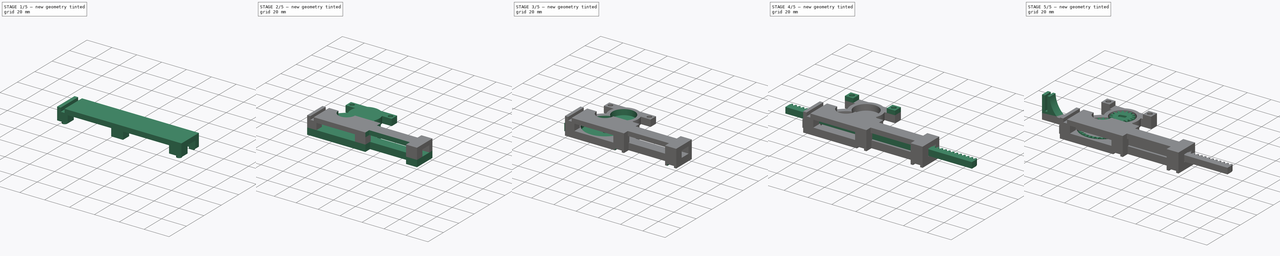
[diagram: build sequence overview — one tinted view per stage of 5, left to right]
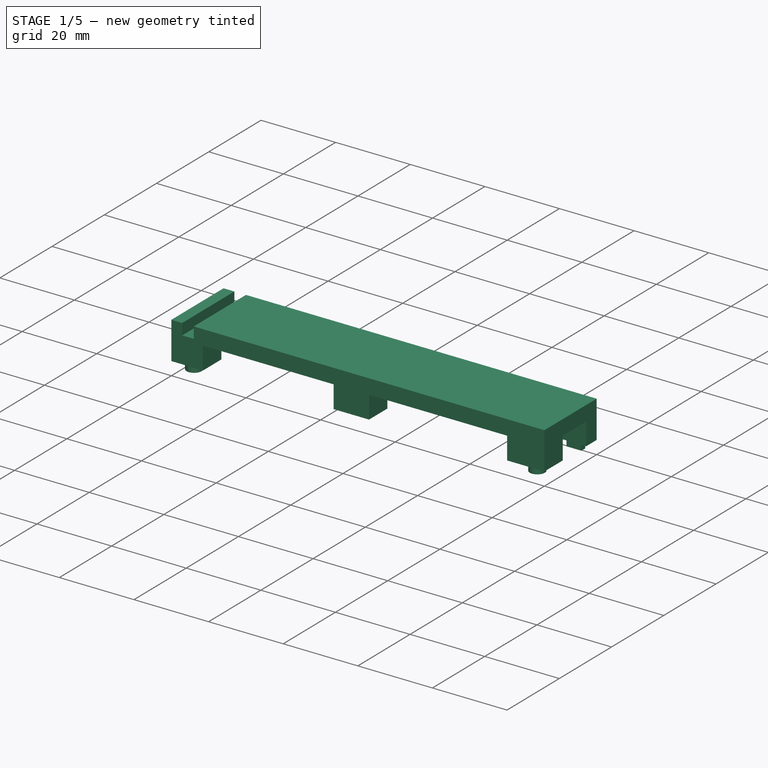
[diagram: stage 1 of 5 — iso view after this stage's code; geometry added in this stage tinted green]
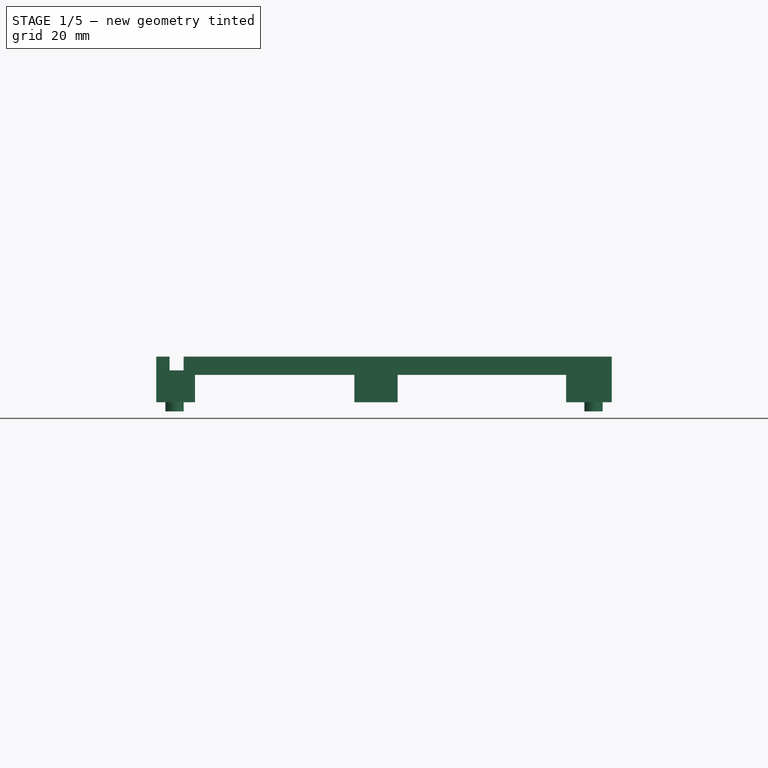
[diagram: stage 1 of 5 — front view after this stage's code; geometry added in this stage tinted green]
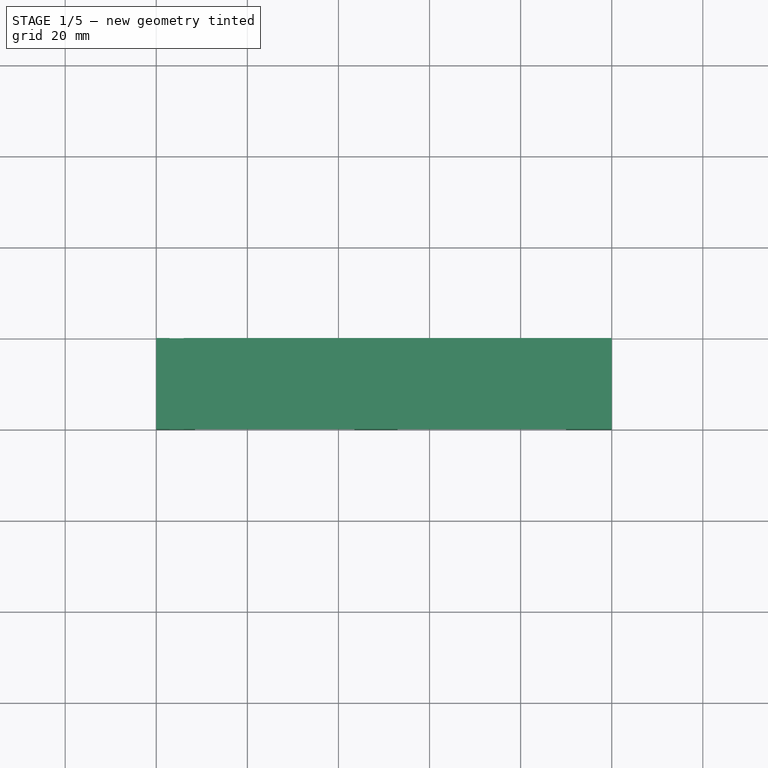
[diagram: stage 1 of 5 — top view after this stage's code; geometry added in this stage tinted green]
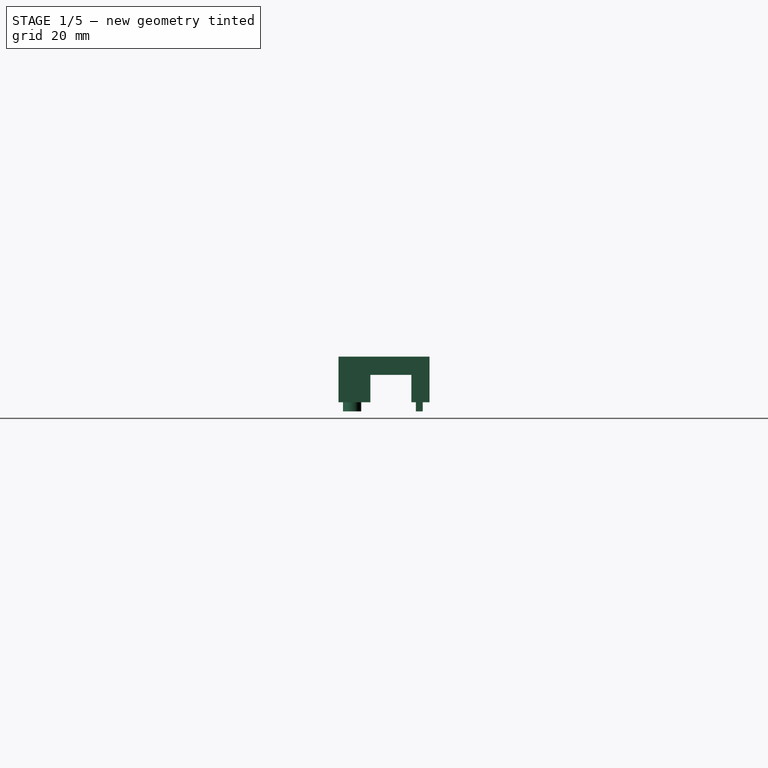
[diagram: stage 1 of 5 — right view after this stage's code; geometry added in this stage tinted green]
FCSTD DOCUMENT  (FreeCAD 0.16R)
Label: pump5
License: All rights reserved
LicenseURL: http://en.wikipedia.org/wiki/All_rights_reserved
objects: Sketcher::SketchObject×15, PartDesign::Pocket×9, PartDesign::Pad×6, Part::FeaturePython×2, Part::Cut×1
note: 48 computed .brp shape members not serialized (recipe doc carries the construction recipe); baked Part::Feature solids carry a one-line shape summary decoded from their .brp

FEATURE [Sketcher::SketchObject] Sketch004  label="rack_pocket"
  Placement = pos=(100,0,0) rot=(0.57735,0.57735,0.57735;2.0944rad)
  sketch-geometry (8):
    g0: LineSegment StartX=7 StartY=12 StartZ=0 EndX=16 EndY=12 EndZ=0
    g1: LineSegment StartX=16 StartY=12 StartZ=0 EndX=16 EndY=6 EndZ=0
    g2: LineSegment StartX=7 StartY=6 StartZ=0 EndX=7 EndY=12 EndZ=0
    g3: LineSegment StartX=20 StartY=6 StartZ=0 EndX=20 EndY=16 EndZ=0
    g4: LineSegment StartX=20 StartY=16 StartZ=0 EndX=0 EndY=16 EndZ=0
    g5: LineSegment StartX=0 StartY=16 StartZ=0 EndX=0 EndY=6 EndZ=0
    g6: LineSegment StartX=0 StartY=6 StartZ=0 EndX=7 EndY=6 EndZ=0
    g7: LineSegment StartX=16 StartY=6 StartZ=0 EndX=20 EndY=6 EndZ=0
  constraints (24):
    c: Coincident(g0,g1)
    c: Coincident(g2,g0)
    c: Horizontal(g0)
    c: Vertical(g1)
    c: Vertical(g2)
    c: DistanceX(g2,g1) = 9
    c: DistanceY(g2,g2) = 6
    c: DistanceY(g-1,g2) = 6
    c: Coincident(g3,g4)
    c: Coincident(g4,g5)
    c: Horizontal(g4)
    c: Vertical(g3)
    c: Vertical(g5)
    c: PointOnObject(g5,g-2)
    c: Coincident(g6,g5)
    c: Coincident(g6,g2)
    c: Horizontal(g6)
    c: Coincident(g7,g1)
    c: Coincident(g7,g3)
    c: Horizontal(g7)
    c: DistanceX(g-1,g2) = 7
    c: DistanceX(g4,g3) = 20
    c: DistanceY(g5,g4) = 10
    c: DistanceY(g-1,g1) = 6
FEATURE [PartDesign::Pad] Pad008
  Length = 100
  Length2 = 100
  Placement = pos=(100,0,0) rot=(0.57735,0.57735,0.57735;2.0944rad)
  Reversed = true
  Sketch = -> Sketch004
  Type = 0
FEATURE [Sketcher::SketchObject] Sketch015  label="guide"
  Placement = pos=(0,0,0) rot=(0.57735,-0.57735,-0.57735;2.0944rad)
  Support = -> Pocket010 [Face9]
  sketch-geometry (8):
    g0: LineSegment StartX=-16.5 StartY=6.5 StartZ=0 EndX=-16.5 EndY=0 EndZ=0
    g1: LineSegment StartX=-6.25 StartY=0 StartZ=0 EndX=-6.25 EndY=6.5 EndZ=0
    g2: LineSegment StartX=-6.25 StartY=6.5 StartZ=0 EndX=-7.25 EndY=6.5 EndZ=0
    g3: LineSegment StartX=-7.25 StartY=6.5 StartZ=0 EndX=-7.25 EndY=6 EndZ=0
    g4: LineSegment StartX=-7.25 StartY=6 StartZ=0 EndX=-15.5 EndY=6 EndZ=0
    g5: LineSegment StartX=-15.5 StartY=6 StartZ=0 EndX=-15.5 EndY=6.5 EndZ=0
    g6: LineSegment StartX=-15.5 StartY=6.5 StartZ=0 EndX=-16.5 EndY=6.5 EndZ=0
    g7: LineSegment StartX=-16.5 StartY=0 StartZ=0 EndX=-6.25 EndY=0 EndZ=0
  constraints (25):
    c: PointOnObject(g0,g-1)
    c: Vertical(g0)
    c: PointOnObject(g1,g-1)
    c: Vertical(g1)
    c: Coincident(g2,g1)
    c: Horizontal(g2)
    c: Coincident(g3,g2)
    c: Coincident(g4,g3)
    c: Horizontal(g4)
    c: Coincident(g5,g4)
    c: Vertical(g5)
    c: Coincident(g6,g0)
    c: Horizontal(g6)
    c: DistanceX(g4,g4) = 8.25
    c: DistanceX(g1,g-1) = 6.25
    c: DistanceX(g2,g2) = 1
    c: Vertical(g3)
    c: Coincident(g5,g6)
    c: DistanceX(g6,g6) = 1
    c: DistanceY(g-1,g3) = 6
    c: DistanceY(g3,g3) = 0.5
    c: DistanceY(g5,g5) = 0.5
    c: Horizontal(g7)
    c: Coincident(g0,g7)
    c: Coincident(g1,g7)
FEATURE [PartDesign::Pad] Pad
  Length = 2
  Length2 = 100
  Placement = pos=(100,0,0) rot=(0.57735,0.57735,0.57735;2.0944rad)
  Sketch = -> Sketch013
  Type = 0
FEATURE [Sketcher::SketchObject] Sketch005  label="pockets_upper"
  Placement = pos=(100,0,0) rot=(-0.57735,-0.57735,0.57735;4.18879rad)
  Support = -> Pad [Face10]
  sketch-geometry (8):
    g0: LineSegment StartX=-6 StartY=-10 StartZ=0 EndX=-12 EndY=-10 EndZ=0
    g1: LineSegment StartX=-12 StartY=-10 StartZ=0 EndX=-12 EndY=-47 EndZ=0
    g2: LineSegment StartX=-12 StartY=-47 StartZ=0 EndX=-6 EndY=-47 EndZ=0
    g3: LineSegment StartX=-6 StartY=-47 StartZ=0 EndX=-6 EndY=-10 EndZ=0
    g4: LineSegment StartX=-12 StartY=-56.5 StartZ=0 EndX=-6 EndY=-56.5 EndZ=0
    g5: LineSegment StartX=-6 StartY=-56.5 StartZ=0 EndX=-6 EndY=-91.5 EndZ=0
    g6: LineSegment StartX=-6 StartY=-91.5 StartZ=0 EndX=-12 EndY=-91.5 EndZ=0
    g7: LineSegment StartX=-12 StartY=-91.5 StartZ=0 EndX=-12 EndY=-56.5 EndZ=0
  constraints (24):
    c: Coincident(g0,g1)
    c: Coincident(g1,g2)
    c: Coincident(g2,g3)
    c: Coincident(g3,g0)
    c: Horizontal(g0)
    c: Horizontal(g2)
    c: Vertical(g1)
    c: Vertical(g3)
    c: DistanceY(g3,g3) = 37
    c: DistanceX(g0,g0) = 6
    c: DistanceX(g0,g-1) = 6
    c: DistanceY(g0,g-1) = 10
    c: Coincident(g4,g5)
    c: Coincident(g5,g6)
    c: Coincident(g6,g7)
    c: Coincident(g7,g4)
    c: Horizontal(g4)
    c: Horizontal(g6)
    c: Vertical(g5)
    c: Vertical(g7)
    c: DistanceY(g7,g7) = 35
    c: DistanceX(g4,g4) = 6
    c: DistanceX(g4,g-1) = 6
    c: DistanceY(g4,g2) = 9.5
FEATURE [PartDesign::Pocket] Pocket013
  Length = 20
  Placement = pos=(100,0,0) rot=(0.57735,0.57735,0.57735;2.0944rad)
  Sketch = -> Sketch005
  Type = 0
FEATURE [Sketcher::SketchObject] Sketch009  label="syringe_holder"
  Placement = pos=(100,0,0) rot=(-0.57735,-0.57735,0.57735;4.18879rad)
  Support = -> Pocket013 [Face9]
  sketch-geometry (4):
    g0: LineSegment StartX=-13 StartY=-97.1 StartZ=0 EndX=-21 EndY=-97.1 EndZ=0
    g1: LineSegment StartX=-21 StartY=-97.1 StartZ=0 EndX=-21 EndY=-94 EndZ=0
    g2: LineSegment StartX=-21 StartY=-94 StartZ=0 EndX=-13 EndY=-94 EndZ=0
    g3: LineSegment StartX=-13 StartY=-94 StartZ=0 EndX=-13 EndY=-97.1 EndZ=0
  constraints (12):
    c: Coincident(g0,g1)
    c: Coincident(g1,g2)
    c: Coincident(g2,g3)
    c: Coincident(g3,g0)
    c: Horizontal(g0)
    c: Horizontal(g2)
    c: Vertical(g1)
    c: Vertical(g3)
    c: DistanceY(g3,g3) = 3.1
    c: DistanceX(g2,g2) = 8
    c: DistanceY(g2,g-1) = 94
    c: DistanceX(g2,g-1) = 13
FEATURE [PartDesign::Pocket] Pocket014
  Length = 20
  Placement = pos=(100,0,0) rot=(0.57735,0.57735,0.57735;2.0944rad)
  Sketch = -> Sketch009
  Type = 0
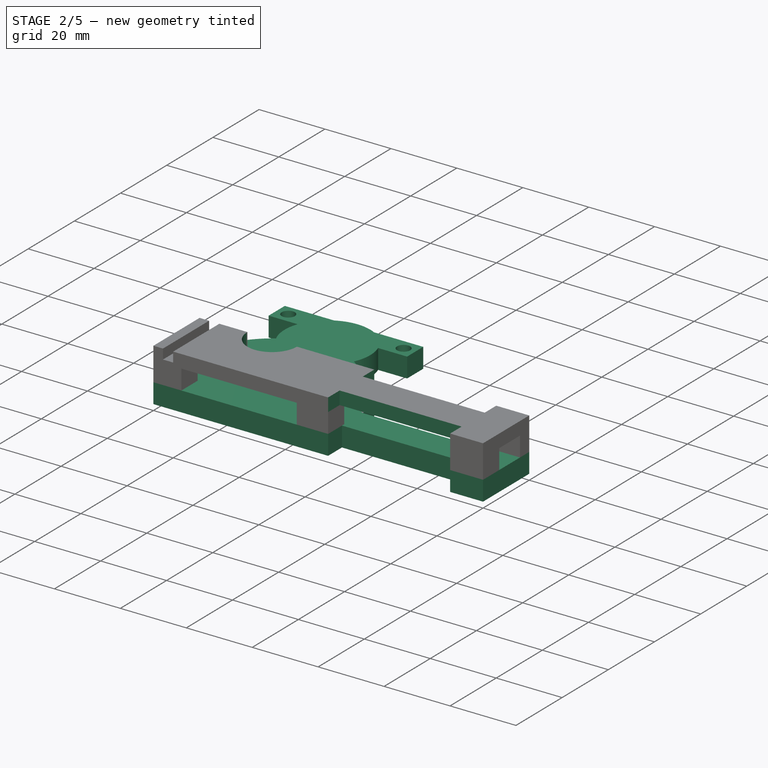
[diagram: stage 2 of 5 — iso view after this stage's code; geometry added in this stage tinted green]
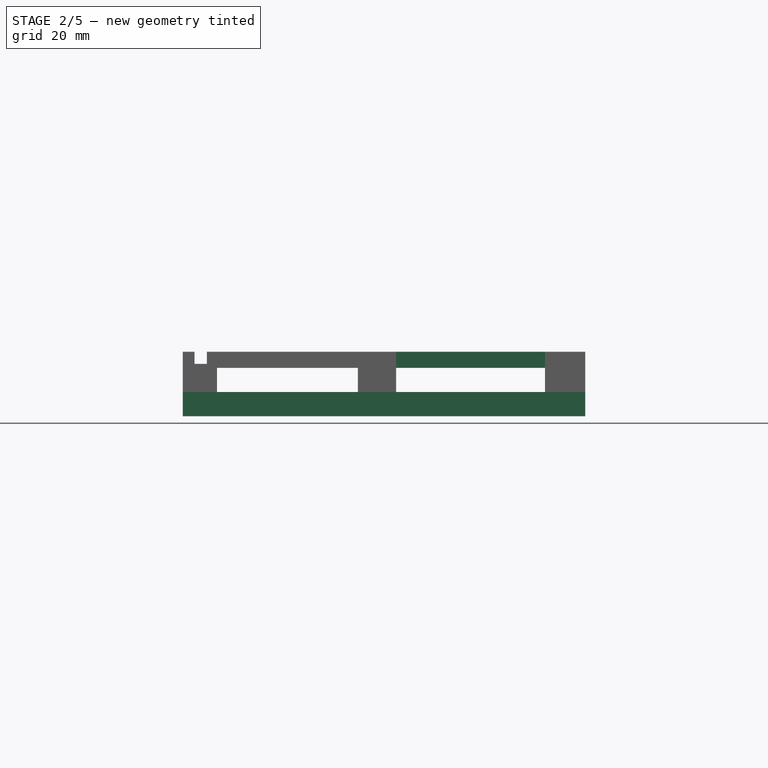
[diagram: stage 2 of 5 — front view after this stage's code; geometry added in this stage tinted green]
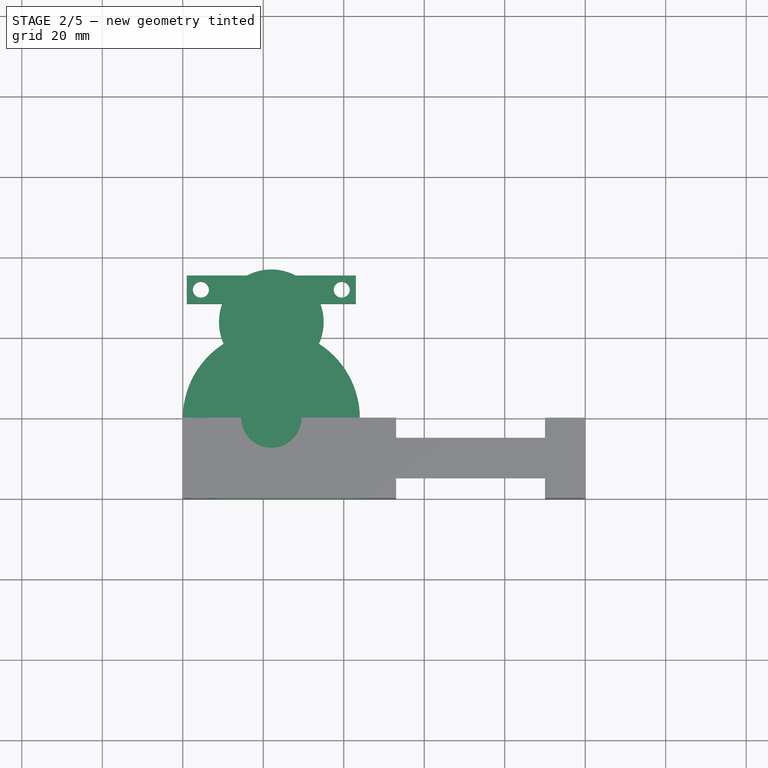
[diagram: stage 2 of 5 — top view after this stage's code; geometry added in this stage tinted green]
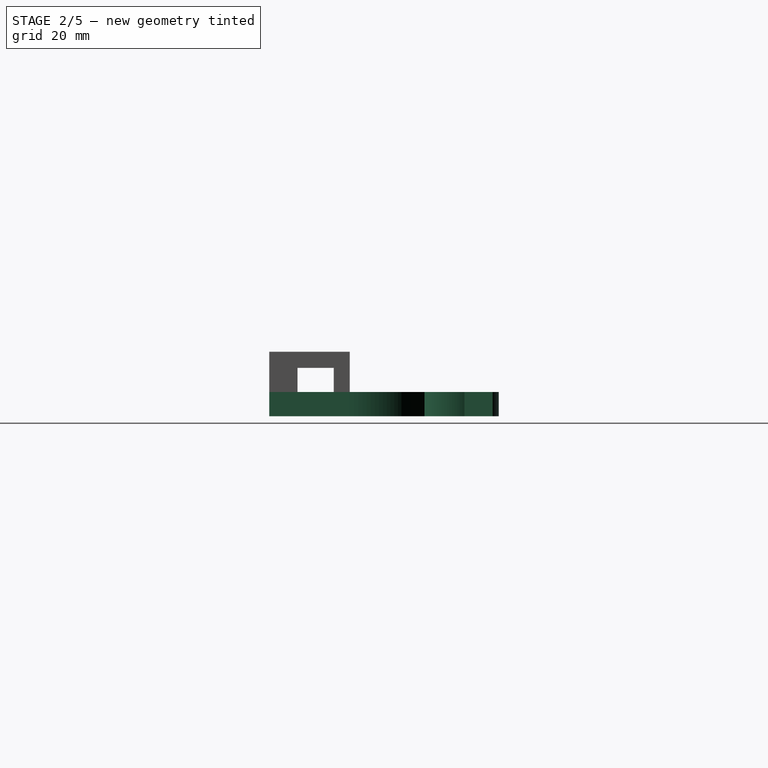
[diagram: stage 2 of 5 — right view after this stage's code; geometry added in this stage tinted green]
FEATURE [Sketcher::SketchObject] Sketch013  label="clip_pad_upper"
  Placement = pos=(100,0,6) rot=(0.707107,0.707107,0;3.14159rad)
  Support = -> Pad008 [Face7]
  sketch-geometry (6):
    g0: Circle CenterX=3 CenterY=-4 CenterZ=0 NormalX=0 NormalY=0 NormalZ=1 Radius=2
    g1: Circle CenterX=3 CenterY=-96 CenterZ=0 NormalX=0 NormalY=0 NormalZ=1 Radius=2
    g2: LineSegment StartX=17 StartY=-2 StartZ=0 EndX=18.5 EndY=-2 EndZ=0
    g3: LineSegment StartX=18.5 StartY=-2 StartZ=0 EndX=18.5 EndY=-6 EndZ=0
    g4: LineSegment StartX=18.5 StartY=-6 StartZ=0 EndX=17 EndY=-6 EndZ=0
    g5: LineSegment StartX=17 StartY=-6 StartZ=0 EndX=17 EndY=-2 EndZ=0
  constraints (18):
    c: Radius(g0) = 2
    c: DistanceX(g-1,g0) = 3
    c: DistanceY(g0,g-1) = 4
    c: DistanceX(g-1,g1) = 3
    c: DistanceY(g1,g-1) = 96
    c: Radius(g1) = 2
    c: Coincident(g2,g3)
    c: Coincident(g3,g4)
    c: Coincident(g4,g5)
    c: Coincident(g5,g2)
    c: Horizontal(g2)
    c: Horizontal(g4)
    c: Vertical(g3)
    c: Vertical(g5)
    c: DistanceY(g3,g3) = 4
    c: DistanceX(g2,g2) = 1.5
    c: DistanceX(g-1,g2) = 17
    c: DistanceY(g2,g-1) = 2
FEATURE [Sketcher::SketchObject] Sketch016  label="main_body"
  sketch-geometry (25):
    g0: LineSegment StartX=0 StartY=0 StartZ=0 EndX=0 EndY=20 EndZ=0
    g1: LineSegment StartX=0 StartY=0 StartZ=0 EndX=53 EndY=0 EndZ=0
    g2: LineSegment StartX=100 StartY=0 StartZ=0 EndX=100 EndY=20 EndZ=0
    g3: LineSegment StartX=100 StartY=20 StartZ=0 EndX=90 EndY=20 EndZ=0
    g4: ArcOfCircle CenterX=22 CenterY=20 CenterZ=0 NormalX=0 NormalY=0 NormalZ=1 Radius=22 StartAngle=2.13736 EndAngle=3.14159
    g5: ArcOfCircle CenterX=22 CenterY=20 CenterZ=0 NormalX=0 NormalY=0 NormalZ=1 Radius=22 StartAngle=0 EndAngle=1.00423
    g6: ArcOfCircle CenterX=22 CenterY=44 CenterZ=0 NormalX=0 NormalY=0 NormalZ=1 Radius=13 StartAngle=5.85165 EndAngle=6.63665
    g7: ArcOfCircle CenterX=22 CenterY=44 CenterZ=0 NormalX=0 NormalY=0 NormalZ=1 Radius=13 StartAngle=2.78812 EndAngle=3.57313
    g8: LineSegment StartX=9.80369 StartY=48.5 StartZ=0 EndX=1 EndY=48.5 EndZ=0
    g9: LineSegment StartX=1 StartY=48.5 StartZ=0 EndX=1 EndY=55.5 EndZ=0
    g10: LineSegment StartX=43 StartY=55.5 StartZ=0 EndX=43 EndY=48.5 EndZ=0
    g11: LineSegment StartX=34.1963 StartY=48.5 StartZ=0 EndX=43 EndY=48.5 EndZ=0
    g12: ArcOfCircle CenterX=22 CenterY=44 CenterZ=0 NormalX=0 NormalY=0 NormalZ=1 Radius=13 StartAngle=1.08567 EndAngle=2.05592
    g13: LineSegment StartX=1 StartY=55.5 StartZ=0 EndX=15.9378 EndY=55.5 EndZ=0
    g14: LineSegment StartX=43 StartY=55.5 StartZ=0 EndX=28.0622 EndY=55.5 EndZ=0
    g15: Circle CenterX=4.5 CenterY=52 CenterZ=0 NormalX=0 NormalY=0 NormalZ=1 Radius=2
    g16: Circle CenterX=39.5 CenterY=52 CenterZ=0 NormalX=0 NormalY=0 NormalZ=1 Radius=2
    g17: LineSegment StartX=90 StartY=20 StartZ=0 EndX=90 EndY=15 EndZ=0
    g18: LineSegment StartX=90 StartY=15 StartZ=0 EndX=53 EndY=15 EndZ=0
    g19: LineSegment StartX=53 StartY=15 StartZ=0 EndX=53 EndY=20 EndZ=0
    g20: LineSegment StartX=53 StartY=6 StartZ=0 EndX=90 EndY=6 EndZ=0
    g21: LineSegment StartX=90 StartY=6 StartZ=0 EndX=90 EndY=0 EndZ=0
    g22: LineSegment StartX=53 StartY=0 StartZ=0 EndX=53 EndY=6 EndZ=0
    g23: LineSegment StartX=53 StartY=20 StartZ=0 EndX=44 EndY=20 EndZ=0
    g24: LineSegment StartX=90 StartY=0 StartZ=0 EndX=100 EndY=0 EndZ=0
  constraints (77):
    c: Coincident(g0,g-1)
    c: Vertical(g0)
    c: Horizontal(g1)
    c: Vertical(g2)
    c: Horizontal(g3)
    c: Coincident(g4,g0)
    c: Coincident(g5,g4)
    c: Coincident(g5,g23)
    c: Coincident(g7,g4)
    c: Coincident(g6,g5)
    c: Radius(g5) = 22
    c: Radius(g4) = 22
    c: Radius(g6) = 13
    c: Coincident(g1,g0)
    c: DistanceX(g-1,g4) = 22
    c: DistanceX(g-1,g7) = 22
    c: DistanceY(g4,g7) = 24
    c: DistanceX(g-1,g24) = 100
    c: Coincident(g24,g2)
    c: Coincident(g2,g3)
    c: DistanceY(g-1,g4) = 20
    c: DistanceY(g-1,g2) = 20
    c: Equal(g6,g7)
    c: Coincident(g6,g7)
    c: DistanceY(g6,g6) = 4.5
    c: Horizontal(g8)
    c: Coincident(g9,g8)
    c: Vertical(g9)
    c: Vertical(g10)
    c: Coincident(g11,g6)
    c: Coincident(g11,g10)
    c: Horizontal(g11)
    c: DistanceX(g6,g10) = 21
    c: DistanceX(g9,g6) = 21
    c: DistanceY(g10,g10) = 7
    c: DistanceY(g8,g9) = 7
    c: Coincident(g7,g8)
    c: Coincident(g12,g6)
    c: Coincident(g13,g9)
    c: Coincident(g13,g12)
    c: Horizontal(g13)
    c: Coincident(g14,g10)
    c: Coincident(g14,g12)
    c: Horizontal(g14)
    c: Radius(g12) = 13
    c: DistanceY(g6,g8) = 4.5
    c: DistanceX(g15,g16) = 35
    c: DistanceX(g6,g16) = 17.5
    c: DistanceY(g6,g16) = 8
    c: DistanceY(g6,g15) = 8
    c: Radius(g15) = 2
    c: Radius(g16) = 2
    c: Coincident(g17,g18)
    c: Coincident(g18,g19)
    c: Horizontal(g18)
    c: Vertical(g17)
    c: Vertical(g19)
    c: Coincident(g20,g21)
    c: Coincident(g22,g20)
    c: Horizontal(g20)
    c: Vertical(g21)
    c: Vertical(g22)
    c: DistanceX(g20,g20) = 37
    c: DistanceX(g18,g18) = 37
    c: DistanceY(g17,g17) = 5
    c: DistanceX(g-1,g22) = 53
    c: DistanceX(g-1,g18) = 53
    c: PointOnObject(g19,g3)
    c: PointOnObject(g3,g17)
    c: PointOnObject(g23,g19)
    c: Tangent(g3,g23)
    c: PointOnObject(g1,g22)
    c: Coincident(g24,g21)
    c: Tangent(g1,g24)
    c: Coincident(g3,g17)
    c: DistanceY(g21,g21) = 6
    c: Coincident(g1,g22)
FEATURE [PartDesign::Pad] Pad012
  Length = 6
  Length2 = 100
  Sketch = -> Sketch016
  Type = 0
FEATURE [Sketcher::SketchObject] Sketch007  label="pocket_gear_upper"
  Placement = pos=(100,0,16) rot=(0,0,-1;1.5708rad)
  Support = -> Pocket014 [Face8]
  sketch-geometry (10):
    g0: ArcOfCircle CenterX=-20 CenterY=-78 CenterZ=0 NormalX=0 NormalY=0 NormalZ=1 Radius=7.5 StartAngle=4.71239 EndAngle=7.85398
    g1: LineSegment StartX=-20 StartY=-85.5 StartZ=0 EndX=-20 EndY=-70.5 EndZ=0
    g2: LineSegment StartX=-20 StartY=-10 StartZ=0 EndX=-15 EndY=-10 EndZ=0
    g3: LineSegment StartX=-15 StartY=-10 StartZ=0 EndX=-15 EndY=-47 EndZ=0
    g4: LineSegment StartX=-15 StartY=-47 StartZ=0 EndX=-20 EndY=-47 EndZ=0
    g5: LineSegment StartX=-20 StartY=-47 StartZ=0 EndX=-20 EndY=-10 EndZ=0
    g6: LineSegment StartX=-5 StartY=-10 StartZ=0 EndX=0 EndY=-10 EndZ=0
    g7: LineSegment StartX=0 StartY=-10 StartZ=0 EndX=0 EndY=-47 EndZ=0
    g8: LineSegment StartX=0 StartY=-47 StartZ=0 EndX=-5 EndY=-47 EndZ=0
    g9: LineSegment StartX=-5 StartY=-47 StartZ=0 EndX=-5 EndY=-10 EndZ=0
  constraints (31):
    c: Vertical(g1)
    c: Coincident(g0,g1)
    c: Coincident(g0,g1)
    c: Radius(g0) = 7.5
    c: DistanceY(g0,g-1) = 70.5
    c: DistanceX(g0,g-1) = 20
    c: DistanceY(g1,g1) = 15
    c: Coincident(g2,g3)
    c: Coincident(g3,g4)
    c: Coincident(g4,g5)
    c: Coincident(g5,g2)
    c: Horizontal(g2)
    c: Horizontal(g4)
    c: Vertical(g3)
    c: Vertical(g5)
    c: Coincident(g6,g7)
    c: Coincident(g7,g8)
    c: Coincident(g8,g9)
    c: Coincident(g9,g6)
    c: Horizontal(g6)
    c: Horizontal(g8)
    c: Vertical(g7)
    c: Vertical(g9)
    c: DistanceY(g7,g7) = 37
    c: DistanceY(g6,g-1) = 10
    c: DistanceY(g2,g-1) = 10
    c: DistanceX(g2,g2) = 5
    c: DistanceX(g2,g-1) = 15
    c: DistanceX(g6,g-1) = 0
    c: DistanceY(g5,g5) = 37
    c: DistanceX(g6,g6) = 5
FEATURE [PartDesign::Pocket] Pocket015  label="upper_part"
  Length = 5
  Placement = pos=(100,0,0) rot=(0.57735,0.57735,0.57735;2.0944rad)
  Sketch = -> Sketch007
  Type = 0
FEATURE [Sketcher::SketchObject] Sketch021
  Placement = pos=(100,0,6) rot=(0.707107,0.707107,0;3.14159rad)
  Support = -> Pocket015 [Face43]
  sketch-geometry (1):
    g0: Circle CenterX=20 CenterY=-78 CenterZ=0 NormalX=0 NormalY=0 NormalZ=1 Radius=18
  constraints (3):
    c: DistanceX(g-1,g0) = 20
    c: DistanceY(g0,g-1) = 78
    c: Radius(g0) = 18
FEATURE [PartDesign::Pocket] Pocket018
  Length = 5
  Placement = pos=(100,0,0) rot=(0.57735,0.57735,0.57735;2.0944rad)
  Sketch = -> Sketch021
  Type = 0
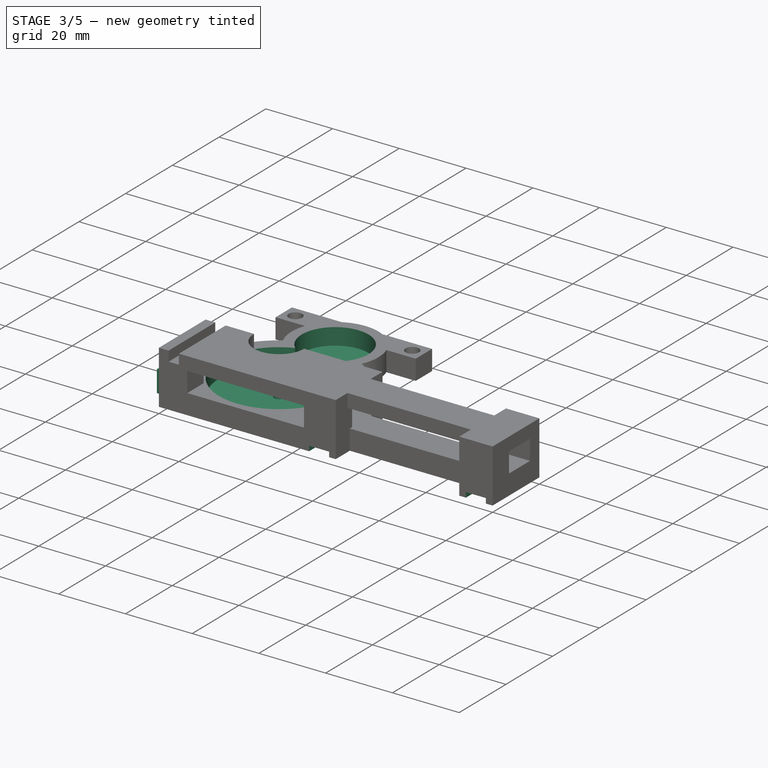
[diagram: stage 3 of 5 — iso view after this stage's code; geometry added in this stage tinted green]
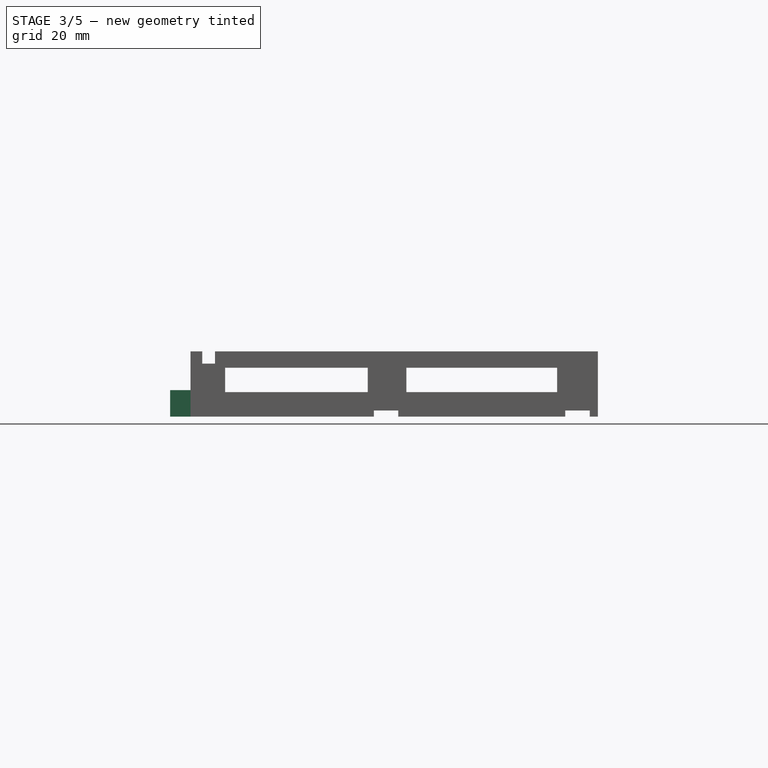
[diagram: stage 3 of 5 — front view after this stage's code; geometry added in this stage tinted green]
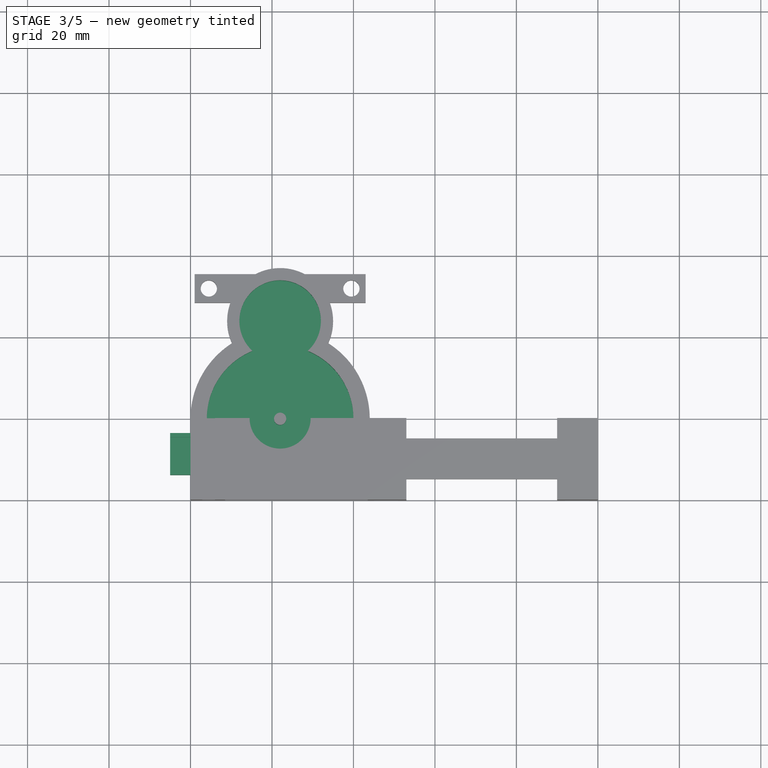
[diagram: stage 3 of 5 — top view after this stage's code; geometry added in this stage tinted green]
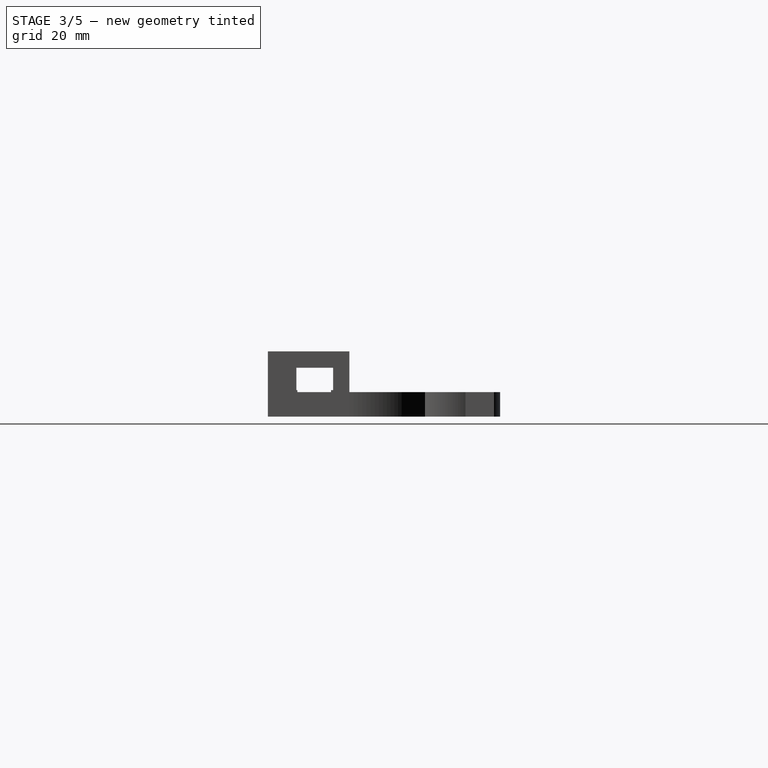
[diagram: stage 3 of 5 — right view after this stage's code; geometry added in this stage tinted green]
FEATURE [Sketcher::SketchObject] Sketch001  label="mechanism_pocket"
  Placement = pos=(0,0,6) rot=(0,0,1;0rad)
  Support = -> Pad012 [Face27]
  sketch-geometry (3):
    g0: ArcOfCircle CenterX=22 CenterY=44 CenterZ=0 NormalX=0 NormalY=0 NormalZ=1 Radius=10 StartAngle=5.45997 EndAngle=10.248
    g1: ArcOfCircle CenterX=22 CenterY=20 CenterZ=0 NormalX=0 NormalY=0 NormalZ=1 Radius=18 StartAngle=1.95811 EndAngle=7.46667
    g2: Circle CenterX=22 CenterY=20 CenterZ=0 NormalX=0 NormalY=0 NormalZ=1 Radius=1.5
  constraints (10):
    c: Radius(g0) = 10
    c: DistanceX(g-1,g0) = 22
    c: Coincident(g1,g0)
    c: Radius(g1) = 18
    c: Coincident(g0,g1)
    c: DistanceY(g-1,g1) = 20
    c: DistanceX(g-1,g1) = 22
    c: DistanceY(g1,g0) = 24
    c: Coincident(g2,g1)
    c: Radius(g2) = 1.5
FEATURE [PartDesign::Pocket] Pocket
  Length = 5
  Sketch = -> Sketch001
  Type = 0
FEATURE [Sketcher::SketchObject] Sketch010  label="zip_tie_lower"
  Placement = pos=(0,0,0) rot=(1,0,0;1.5708rad)
  Support = -> Pocket [Face1]
  sketch-geometry (8):
    g0: LineSegment StartX=45 StartY=1.5 StartZ=0 EndX=51 EndY=1.5 EndZ=0
    g1: LineSegment StartX=51 StartY=1.5 StartZ=0 EndX=51 EndY=0 EndZ=0
    g2: LineSegment StartX=51 StartY=0 StartZ=0 EndX=45 EndY=0 EndZ=0
    g3: LineSegment StartX=45 StartY=0 StartZ=0 EndX=45 EndY=1.5 EndZ=0
    g4: LineSegment StartX=92 StartY=1.5 StartZ=0 EndX=98 EndY=1.5 EndZ=0
    g5: LineSegment StartX=98 StartY=1.5 StartZ=0 EndX=98 EndY=0 EndZ=0
    g6: LineSegment StartX=98 StartY=0 StartZ=0 EndX=92 EndY=0 EndZ=0
    g7: LineSegment StartX=92 StartY=0 StartZ=0 EndX=92 EndY=1.5 EndZ=0
  constraints (24):
    c: Coincident(g0,g1)
    c: Coincident(g1,g2)
    c: Coincident(g2,g3)
    c: Coincident(g3,g0)
    c: Horizontal(g0)
    c: Horizontal(g2)
    c: Vertical(g1)
    c: Vertical(g3)
    c: DistanceX(g0,g0) = 6
    c: DistanceY(g1,g1) = 1.5
    c: DistanceX(g-1,g0) = 45
    c: DistanceY(g-1,g2) = 0
    c: Coincident(g4,g5)
    c: Coincident(g5,g6)
    c: Coincident(g6,g7)
    c: Coincident(g7,g4)
    c: Horizontal(g4)
    c: Horizontal(g6)
    c: Vertical(g5)
    c: Vertical(g7)
    c: DistanceX(g4,g4) = 6
    c: DistanceY(g5,g5) = 1.5
    c: DistanceY(g-1,g6) = 0
    c: DistanceX(g-1,g6) = 92
FEATURE [PartDesign::Pocket] Pocket009
  Length = 20
  Sketch = -> Sketch010
  Type = 0
FEATURE [Sketcher::SketchObject] Sketch017  label="clip_pockets_lower"
  Placement = pos=(0,0,0) rot=(1,0,0;3.14159rad)
  Support = -> Pocket009 [Face6]
  sketch-geometry (6):
    g0: Circle CenterX=4 CenterY=3 CenterZ=0 NormalX=0 NormalY=0 NormalZ=1 Radius=2.1
    g1: Circle CenterX=96 CenterY=3 CenterZ=0 NormalX=0 NormalY=0 NormalZ=1 Radius=2.1
    g2: LineSegment StartX=93.95 StartY=18.65 StartZ=0 EndX=98.05 EndY=18.65 EndZ=0
    g3: LineSegment StartX=98.05 StartY=18.65 StartZ=0 EndX=98.05 EndY=16.85 EndZ=0
    g4: LineSegment StartX=98.05 StartY=16.85 StartZ=0 EndX=93.95 EndY=16.85 EndZ=0
    g5: LineSegment StartX=93.95 StartY=16.85 StartZ=0 EndX=93.95 EndY=18.65 EndZ=0
  constraints (18):
    c: Radius(g0) = 2.1
    c: DistanceX(g-1,g0) = 4
    c: DistanceY(g0,g-1) = -3
    c: DistanceX(g-1,g1) = 96
    c: DistanceY(g1,g-1) = -3
    c: Radius(g1) = 2.1
    c: Coincident(g2,g3)
    c: Coincident(g3,g4)
    c: Coincident(g4,g5)
    c: Coincident(g5,g2)
    c: Horizontal(g2)
    c: Horizontal(g4)
    c: Vertical(g3)
    c: Vertical(g5)
    c: DistanceY(g3,g3) = 1.8
    c: DistanceX(g2,g2) = 4.1
    c: DistanceX(g-1,g4) = 93.95
    c: DistanceY(g-1,g4) = 16.85
FEATURE [PartDesign::Pocket] Pocket010
  Length = 2.1
  Sketch = -> Sketch017
  Type = 0
FEATURE [PartDesign::Pad] Pad013
  Length = 5
  Length2 = 100
  Sketch = -> Sketch015
  Type = 0
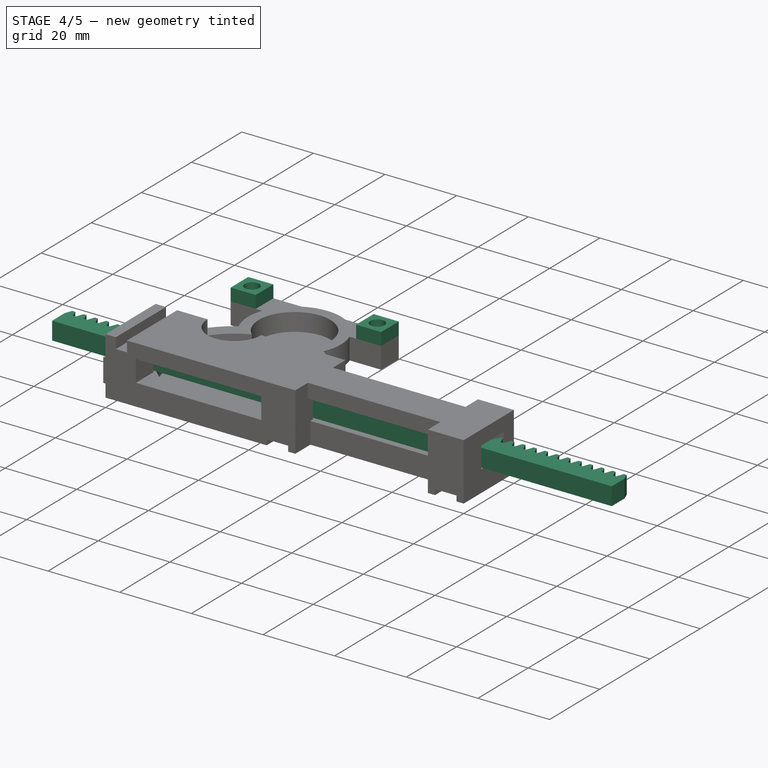
[diagram: stage 4 of 5 — iso view after this stage's code; geometry added in this stage tinted green]
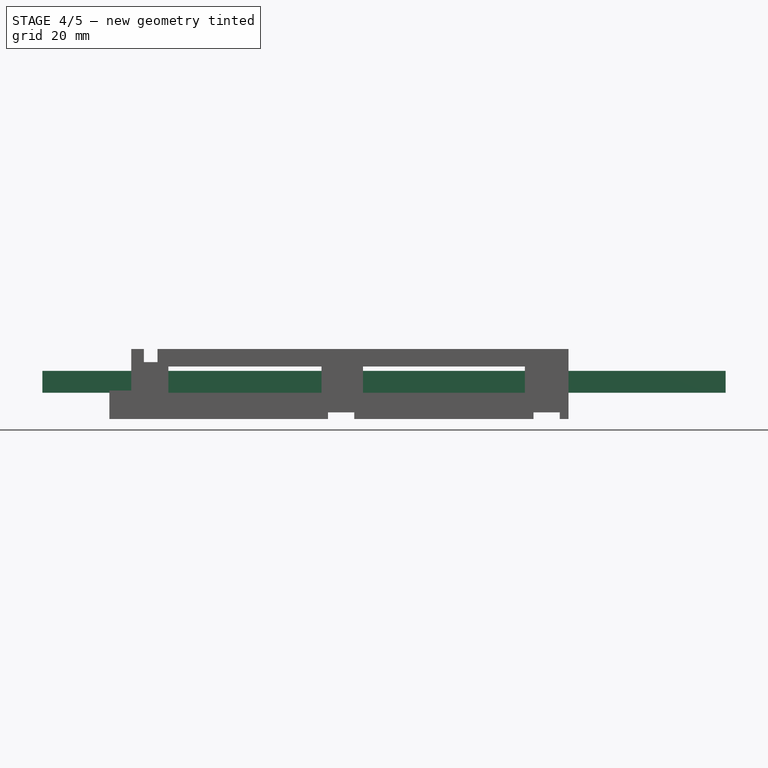
[diagram: stage 4 of 5 — front view after this stage's code; geometry added in this stage tinted green]
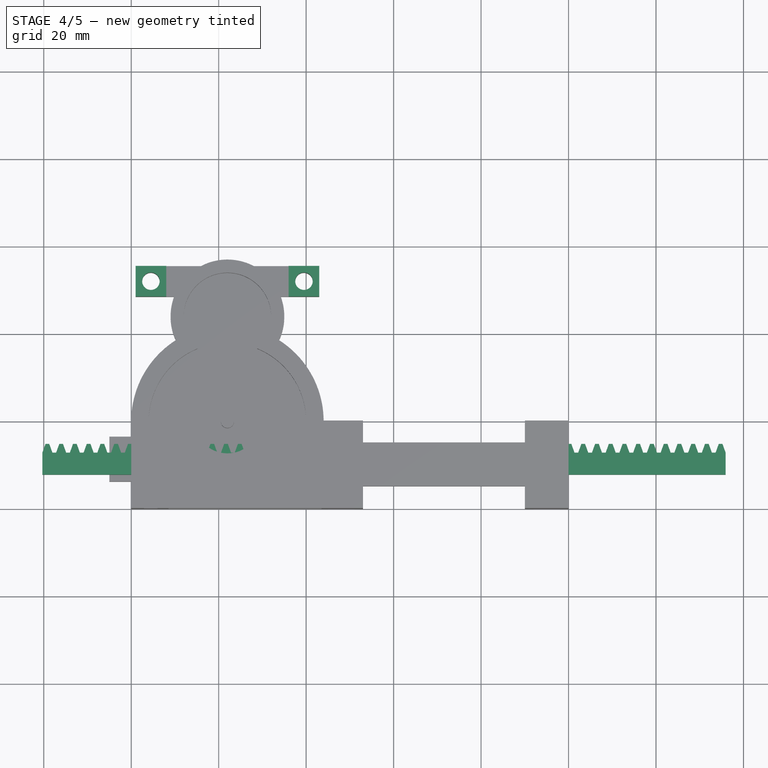
[diagram: stage 4 of 5 — top view after this stage's code; geometry added in this stage tinted green]
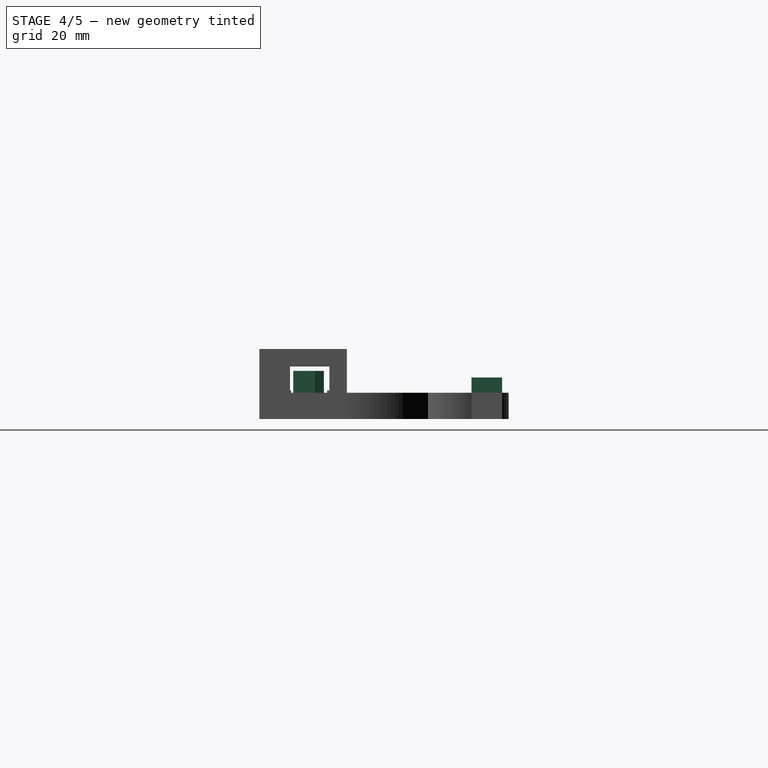
[diagram: stage 4 of 5 — right view after this stage's code; geometry added in this stage tinted green]
FEATURE [Sketcher::SketchObject] Sketch  label="motor_pad"
  Placement = pos=(0,0,6) rot=(0,0,1;0rad)
  Support = -> Pad013 [Face8]
  sketch-geometry (10):
    g0: Circle CenterX=4.5 CenterY=52 CenterZ=0 NormalX=0 NormalY=0 NormalZ=1 Radius=2
    g1: Circle CenterX=39.5 CenterY=52 CenterZ=0 NormalX=0 NormalY=0 NormalZ=1 Radius=2
    g2: LineSegment StartX=1 StartY=55.5 StartZ=0 EndX=8 EndY=55.5 EndZ=0
    g3: LineSegment StartX=8 StartY=55.5 StartZ=0 EndX=8 EndY=48.5 EndZ=0
    g4: LineSegment StartX=8 StartY=48.5 StartZ=0 EndX=1 EndY=48.5 EndZ=0
    g5: LineSegment StartX=1 StartY=48.5 StartZ=0 EndX=1 EndY=55.5 EndZ=0
    g6: LineSegment StartX=36 StartY=55.5 StartZ=0 EndX=43 EndY=55.5 EndZ=0
    g7: LineSegment StartX=43 StartY=55.5 StartZ=0 EndX=43 EndY=48.5 EndZ=0
    g8: LineSegment StartX=43 StartY=48.5 StartZ=0 EndX=36 EndY=48.5 EndZ=0
    g9: LineSegment StartX=36 StartY=48.5 StartZ=0 EndX=36 EndY=55.5 EndZ=0
  constraints (30):
    c: DistanceX(g-1,g0) = 4.5
    c: DistanceY(g-1,g0) = 52
    c: DistanceY(g-1,g1) = 52
    c: DistanceX(g-1,g1) = 39.5
    c: Coincident(g2,g3)
    c: Coincident(g3,g4)
    c: Coincident(g4,g5)
    c: Coincident(g5,g2)
    c: Horizontal(g2)
    c: Horizontal(g4)
    c: Vertical(g3)
    c: Vertical(g5)
    c: Coincident(g6,g7)
    c: Coincident(g7,g8)
    c: Coincident(g8,g9)
    c: Coincident(g9,g6)
    c: Horizontal(g6)
    c: Horizontal(g8)
    c: Vertical(g7)
    c: Vertical(g9)
    c: DistanceX(g2,g2) = 7
    c: DistanceY(g3,g3) = 7
    c: DistanceX(g6,g6) = 7
    c: DistanceY(g7,g7) = 7
    c: DistanceX(g0,g2) = 3.5
    c: DistanceY(g0,g2) = 3.5
    c: DistanceX(g6,g1) = 3.5
    c: DistanceY(g1,g6) = 3.5
    c: Radius(g0) = 2
    c: Radius(g1) = 2
FEATURE [PartDesign::Pad] Pad014  label="lower_part"
  Length = 3.5
  Length2 = 100
  Sketch = -> Sketch
  Type = 0
FEATURE [Part::FeaturePython] InvoluteRack  # WARN: FeaturePython — macro-defined, semantics opaque (R4)
  Placement = pos=(134.77,13.75,6) rot=(0,0,1;1.5708rad)
  beta = 0
  double_helix = false
  head = 0
  height = 5
  module = 1
  pressure_angle = 20
  teeth = 50
  thickness = 5
FEATURE [Sketcher::SketchObject] Sketch020  label="clip_pockets_lower001"
  Placement = pos=(0,0,6) rot=(0,0,1;0rad)
  Support = -> Pad014 [Face8]
  sketch-geometry (6):
    g0: Circle CenterX=4 CenterY=3 CenterZ=0 NormalX=0 NormalY=0 NormalZ=1 Radius=2.1
    g1: Circle CenterX=96 CenterY=3 CenterZ=0 NormalX=0 NormalY=0 NormalZ=1 Radius=2.1
    g2: LineSegment StartX=93.95 StartY=18.65 StartZ=0 EndX=98.05 EndY=18.65 EndZ=0
    g3: LineSegment StartX=98.05 StartY=18.65 StartZ=0 EndX=98.05 EndY=16.85 EndZ=0
    g4: LineSegment StartX=98.05 StartY=16.85 StartZ=0 EndX=93.95 EndY=16.85 EndZ=0
    g5: LineSegment StartX=93.95 StartY=16.85 StartZ=0 EndX=93.95 EndY=18.65 EndZ=0
  constraints (18):
    c: Radius(g0) = 2.1
    c: DistanceX(g-1,g0) = 4
    c: DistanceY(g0,g-1) = -3
    c: DistanceX(g-1,g1) = 96
    c: DistanceY(g1,g-1) = -3
    c: Radius(g1) = 2.1
    c: Coincident(g2,g3)
    c: Coincident(g3,g4)
    c: Coincident(g4,g5)
    c: Coincident(g5,g2)
    c: Horizontal(g2)
    c: Horizontal(g4)
    c: Vertical(g3)
    c: Vertical(g5)
    c: DistanceY(g3,g3) = 1.8
    c: DistanceX(g2,g2) = 4.1
    c: DistanceX(g-1,g4) = 93.95
    c: DistanceY(g-1,g4) = 16.85
FEATURE [PartDesign::Pocket] Pocket017  label="lower_part001"
  Length = 2.1
  Sketch = -> Sketch020
  Type = 0
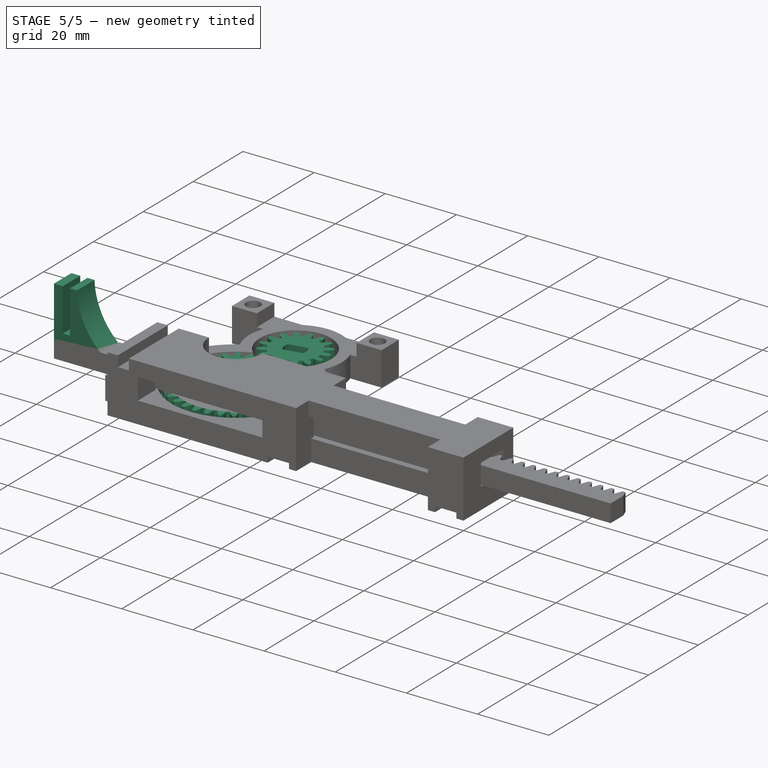
[diagram: stage 5 of 5 — iso view after this stage's code; geometry added in this stage tinted green]
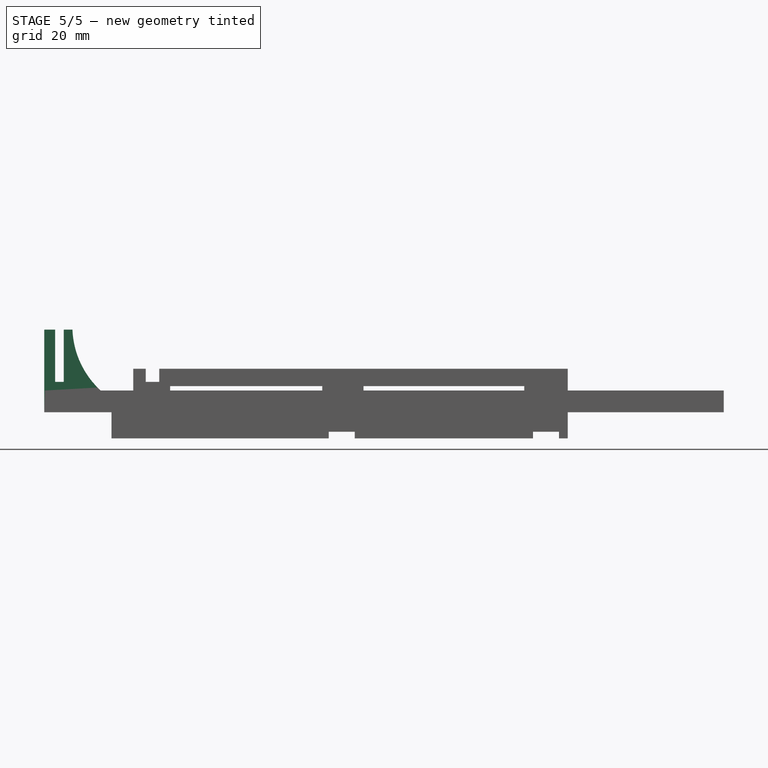
[diagram: stage 5 of 5 — front view after this stage's code; geometry added in this stage tinted green]
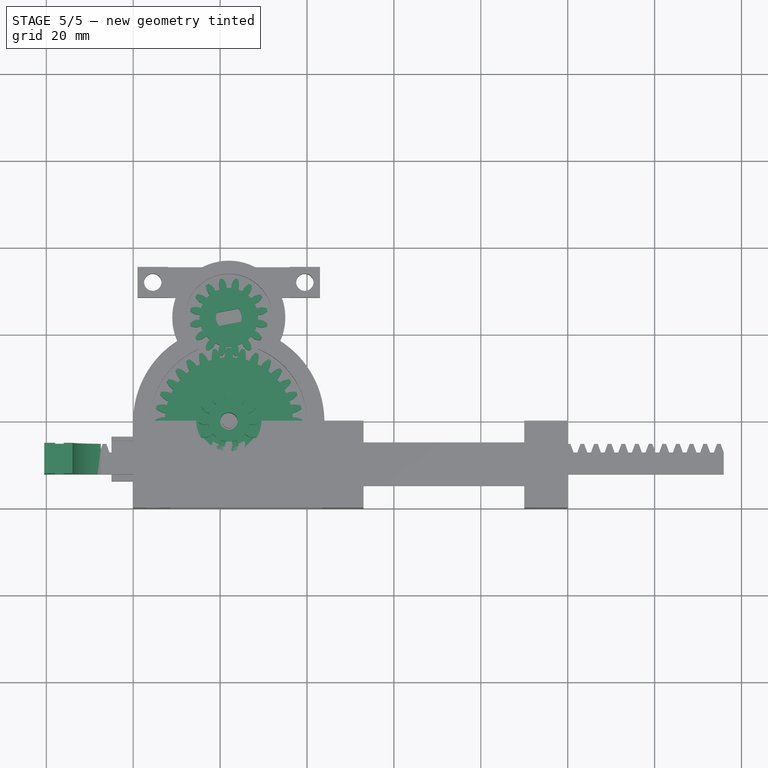
[diagram: stage 5 of 5 — top view after this stage's code; geometry added in this stage tinted green]
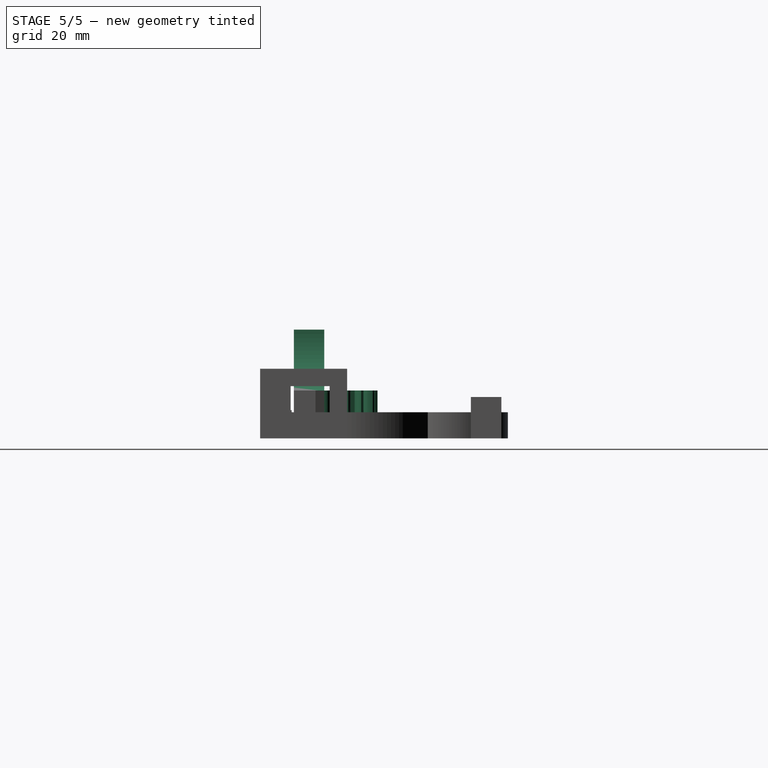
[diagram: stage 5 of 5 — right view after this stage's code; geometry added in this stage tinted green]
FEATURE [Part::Cut] Cut001  label="transmisson"
  Placement = pos=(22,20,1) rot=(0,0,1;0rad)
FEATURE [Part::FeaturePython] InvoluteGear004  # WARN: FeaturePython — macro-defined, semantics opaque (R4)
  Placement = pos=(22,44,1) rot=(0,0,1;0.191986rad)
  backlash = 0
  beta = 0
  clearance = 0.25
  double_helix = false
  head = 0
  height = 5
  module = 1
  numpoints = 6
  pressure_angle = 20
  reversed_backlash = false
  shift = 0
  simple = false
  teeth = 16
  undercut = false
FEATURE [Sketcher::SketchObject] Sketch018  label="gear_pocket"
  Placement = pos=(22,44,6) rot=(0,0,1;0.191986rad)
  Support = -> InvoluteGear004 [Face98]
  sketch-geometry (4):
    g0: ArcOfCircle CenterX=0 CenterY=0 CenterZ=0 NormalX=0 NormalY=0 NormalZ=1 Radius=2.98412 StartAngle=5.73702 EndAngle=6.82935
    g1: ArcOfCircle CenterX=0 CenterY=0 CenterZ=0 NormalX=0 NormalY=0 NormalZ=1 Radius=2.98412 StartAngle=2.59543 EndAngle=3.68776
    g2: LineSegment StartX=-2.55 StartY=-1.55 StartZ=0 EndX=2.55 EndY=-1.55 EndZ=0
    g3: LineSegment StartX=2.55 StartY=1.55 StartZ=0 EndX=-2.55 EndY=1.55 EndZ=0
  constraints (13):
    c: PointOnObject(g0,g-1)
    c: DistanceX(g1,g0) = 2.55
    c: Coincident(g0,g1)
    c: DistanceX(g1,g0) = 2.55
    c: Coincident(g2,g1)
    c: Coincident(g2,g0)
    c: Horizontal(g3)
    c: Coincident(g1,g3)
    c: Coincident(g0,g3)
    c: Equal(g2,g3)
    c: Parallel(g3,g2)
    c: DistanceY(g0,g0) = 3.1
    c: Coincident(g0,g-1)
FEATURE [PartDesign::Pocket] Pocket016  label="motor_gear"
  Length = 5
  Placement = pos=(22,44,1) rot=(0,0,1;0.191986rad)
  Sketch = -> Sketch018
  Type = 0
FEATURE [Sketcher::SketchObject] Sketch019
  Placement = pos=(134.77,7.75,6) rot=(1,0,0;1.5708rad)
  Support = -> InvoluteRack [Face201]
  sketch-geometry (9):
    g0: LineSegment StartX=-155.25 StartY=19 StartZ=0 EndX=-152.75 EndY=19 EndZ=0
    g1: LineSegment StartX=-152.75 StartY=19 StartZ=0 EndX=-152.75 EndY=7 EndZ=0
    g2: LineSegment StartX=-155.25 StartY=0 StartZ=0 EndX=-155.25 EndY=19 EndZ=0
    g3: LineSegment StartX=-150.75 StartY=19 StartZ=0 EndX=-148.75 EndY=19 EndZ=0
    g4: LineSegment StartX=-150.75 StartY=7 StartZ=0 EndX=-150.75 EndY=19 EndZ=0
    g5: LineSegment StartX=-152.75 StartY=7 StartZ=0 EndX=-150.75 EndY=7 EndZ=0
    g6: ArcOfCircle CenterX=-128.765 CenterY=19.7699 CenterZ=0 NormalX=0 NormalY=0 NormalZ=1 Radius=20 StartAngle=3.1801 EndAngle=3.97243
    g7: LineSegment StartX=-142.25 StartY=5 StartZ=0 EndX=-142.25 EndY=0 EndZ=0
    g8: LineSegment StartX=-142.25 StartY=0 StartZ=0 EndX=-155.25 EndY=0 EndZ=0
  constraints (30):
    c: Coincident(g0,g1)
    c: Coincident(g2,g0)
    c: Horizontal(g0)
    c: Vertical(g1)
    c: Vertical(g2)
    c: Coincident(g4,g3)
    c: Horizontal(g3)
    c: Vertical(g4)
    c: Horizontal(g5)
    c: Coincident(g6,g3)
    c: Coincident(g7,g6)
    c: Vertical(g7)
    c: Coincident(g8,g7)
    c: Horizontal(g8)
    c: PointOnObject(g4,g5)
    c: DistanceX(g3,g3) = 2
    c: DistanceX(g0,g0) = 2.5
    c: DistanceX(g5,g5) = 2
    c: Coincident(g4,g5)
    c: PointOnObject(g1,g5)
    c: Coincident(g2,g8)
    c: Coincident(g1,g5)
    c: DistanceY(g2,g2) = 19
    c: DistanceY(g2,g3) = 19
    c: DistanceY(g7,g7) = 5
    c: DistanceY(g4,g4) = 12
    c: DistanceX(g8,g8) = 13
    c: Radius(g6) = 20
    c: DistanceX(g7,g-1) = 142.25
    c: DistanceY(g7,g-1) = 0
FEATURE [PartDesign::Pad] Pad015  label="grip"
  Length = 7
  Length2 = 100
  Placement = pos=(134.77,13.75,6) rot=(0,0,1;1.5708rad)
  Reversed = true
  Sketch = -> Sketch019
  Type = 0
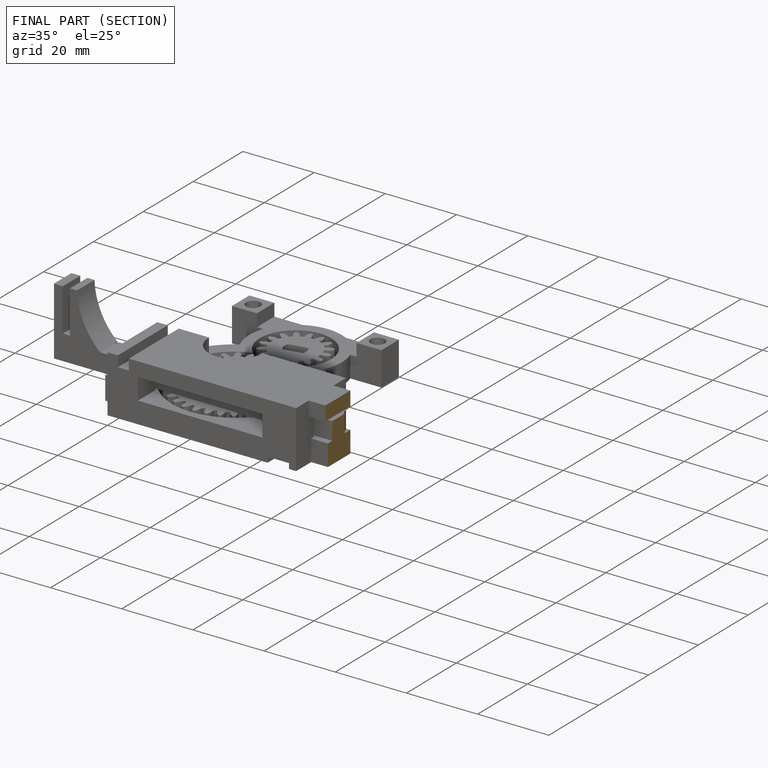
[diagram: finished part — half-section view (interior)]
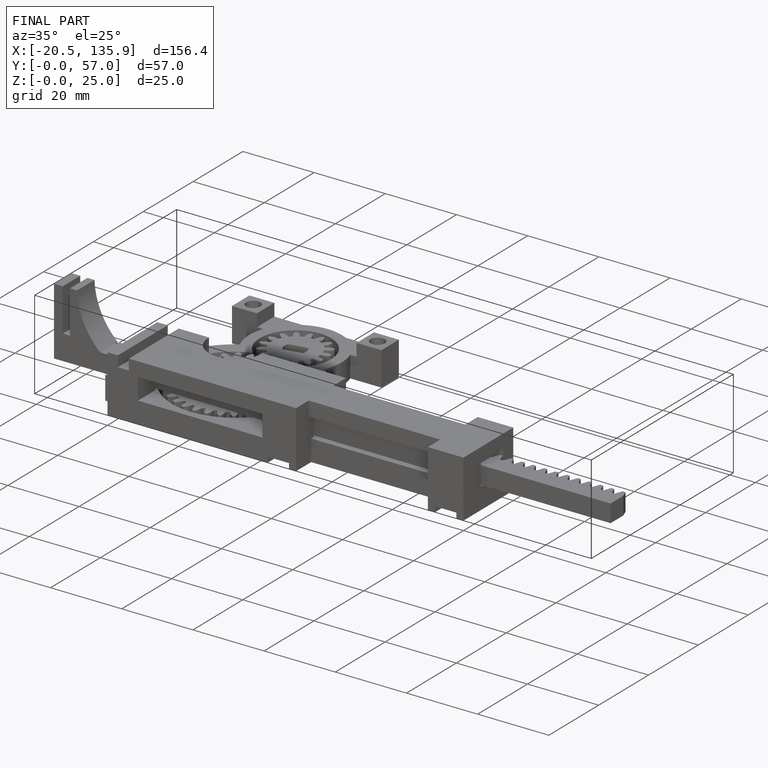
[diagram: finished part — iso view with bounding-box wireframe]
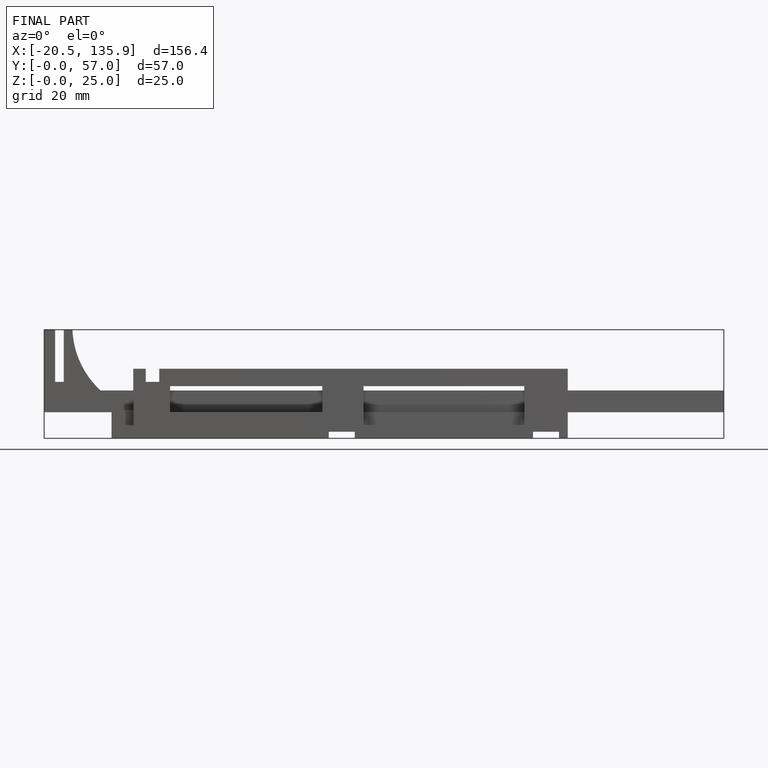
[diagram: finished part — front view with bounding-box wireframe]
